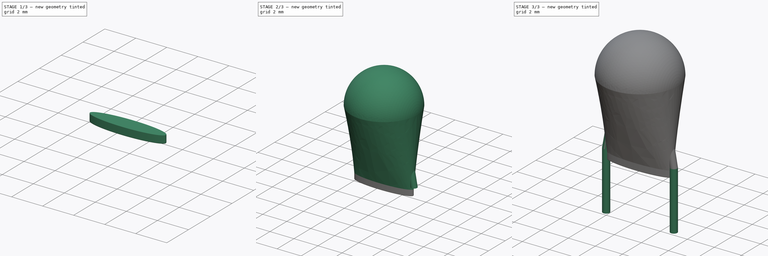
[diagram: build sequence overview — one tinted view per stage of 3, left to right]
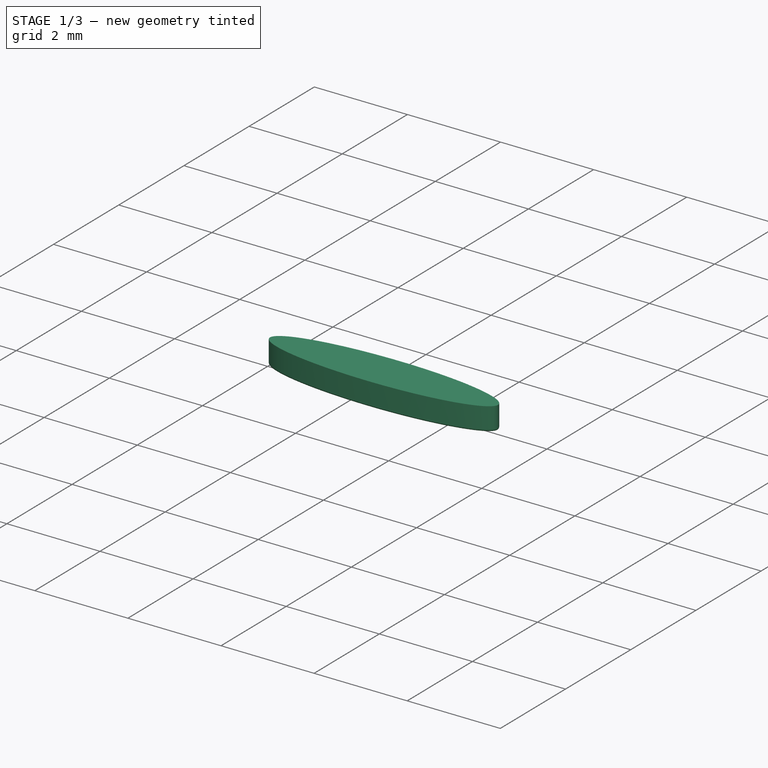
[diagram: stage 1 of 3 — iso view after this stage's code; geometry added in this stage tinted green]
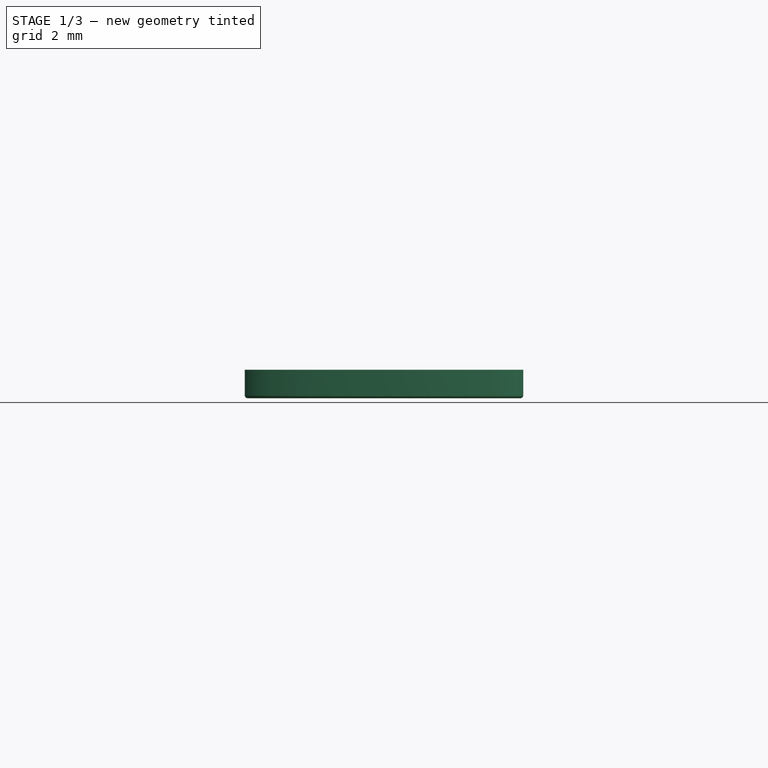
[diagram: stage 1 of 3 — front view after this stage's code; geometry added in this stage tinted green]
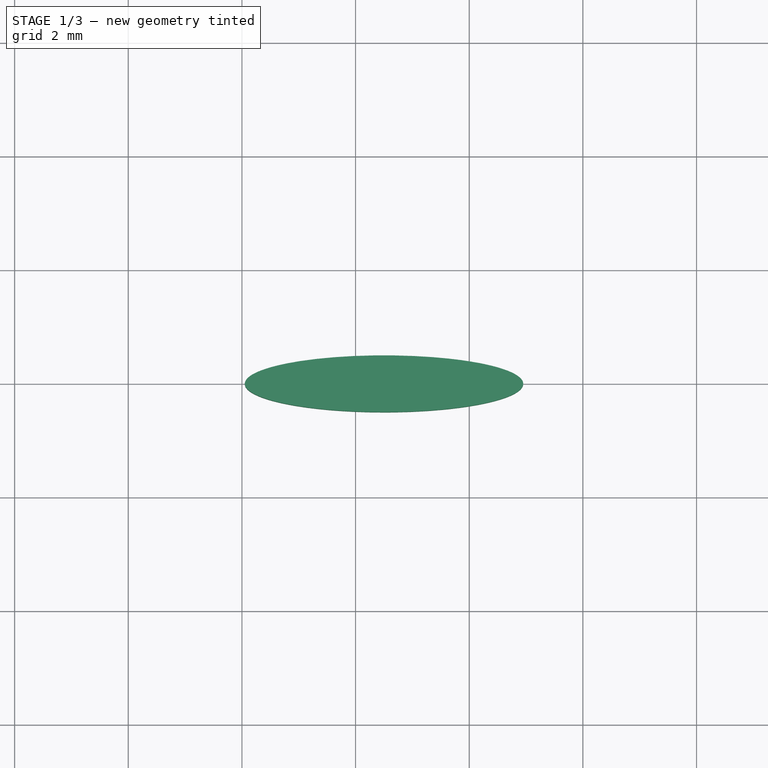
[diagram: stage 1 of 3 — top view after this stage's code; geometry added in this stage tinted green]
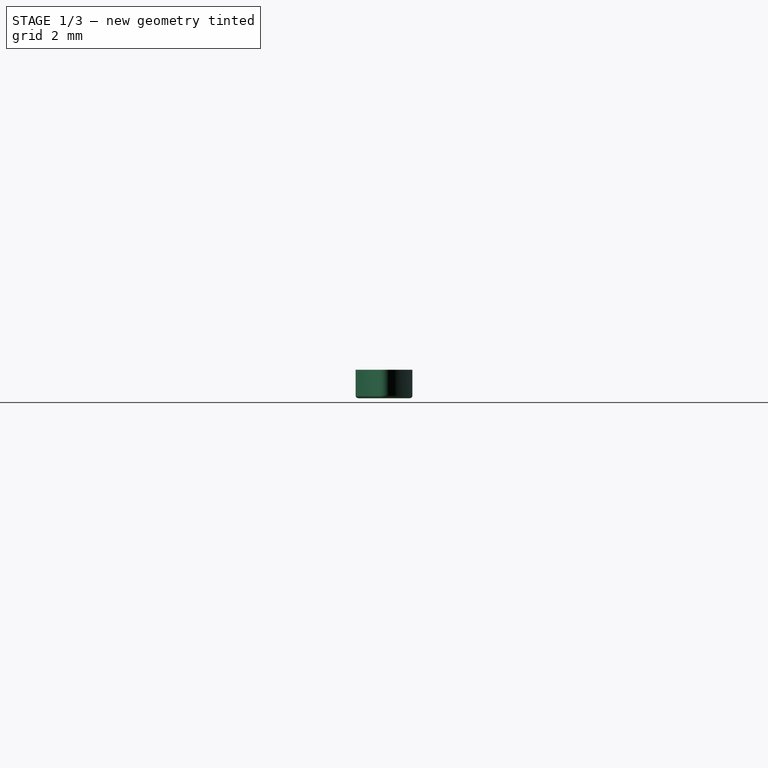
[diagram: stage 1 of 3 — right view after this stage's code; geometry added in this stage tinted green]
FCSTD DOCUMENT  (FreeCAD 0.16R6703 (Git))
Label: CP_Radial_Tantal_D5.5mm_P5.00mm
License: All rights reserved
LicenseURL: http://en.wikipedia.org/wiki/All_rights_reserved
objects: Sketcher::SketchObject×9, Part::Loft×3, PartDesign::Pad×2, Spreadsheet::Sheet×1, PartDesign::Revolution×1, PartDesign::Fillet×1
note: 19 computed .brp shape members not serialized (recipe doc carries the construction recipe); baked Part::Feature solids carry a one-line shape summary decoded from their .brp

FEATURE [Sketcher::SketchObject] Sketch010
  Placement = pos=(0,0,0.9125) rot=(0,0,1;0rad)
  expr: Constraints[8] = 2 * Spreadsheet.d_wire
  expr: Constraints[7] = Spreadsheet.Wx * 0.8 + Spreadsheet.d_wire
  expr: Constraints[6] = Spreadsheet.RMx / 2
  expr: Placement.Base.z = Spreadsheet.d_wire + 0.05 * 1.5 * Spreadsheet.Wx
  sketch-geometry (5):
    g0: Ellipse CenterX=2.5 CenterY=0 CenterZ=0 NormalX=0 NormalY=0 NormalZ=1 MajorRadius=2.45 MinorRadius=0.5 AngleXU=0
    g1: LineSegment [constr] StartX=4.95 StartY=0 StartZ=0 EndX=0.05 EndY=0 EndZ=0
    g2: LineSegment [constr] StartX=2.5 StartY=0.5 StartZ=0 EndX=2.5 EndY=-0.5 EndZ=0
    g3: GeomPoint [constr] X=4.89844 Y=0 Z=0
    g4: GeomPoint [constr] X=0.101563 Y=0 Z=0
  constraints (6):
    c: InternalAlignment(g1-g4 -> g0) x4
    c: PointOnObject(g0,g-1)
    c: Horizontal(g1)
    c: DistanceX(g-1,g0) = 2.5
    c: DistanceX(g1,g1) = 4.9
    c: DistanceY(g2,g2) = 1
FEATURE [PartDesign::Pad] Pad
  Length = 0.5
  Length2 = 100
  Placement = pos=(0,0,0.9125) rot=(0,0,1;0rad)
  Reversed = true
  Sketch = -> Sketch010
  Type = 0
  expr: Length = Spreadsheet.d_wire
FEATURE [PartDesign::Fillet] Fillet
  Base = -> Pad [Edge3]
  Placement = pos=(0,0,0.9125) rot=(0,0,1;0rad)
  Radius = 0.05
  expr: Radius = Spreadsheet.d_wire * 0.1
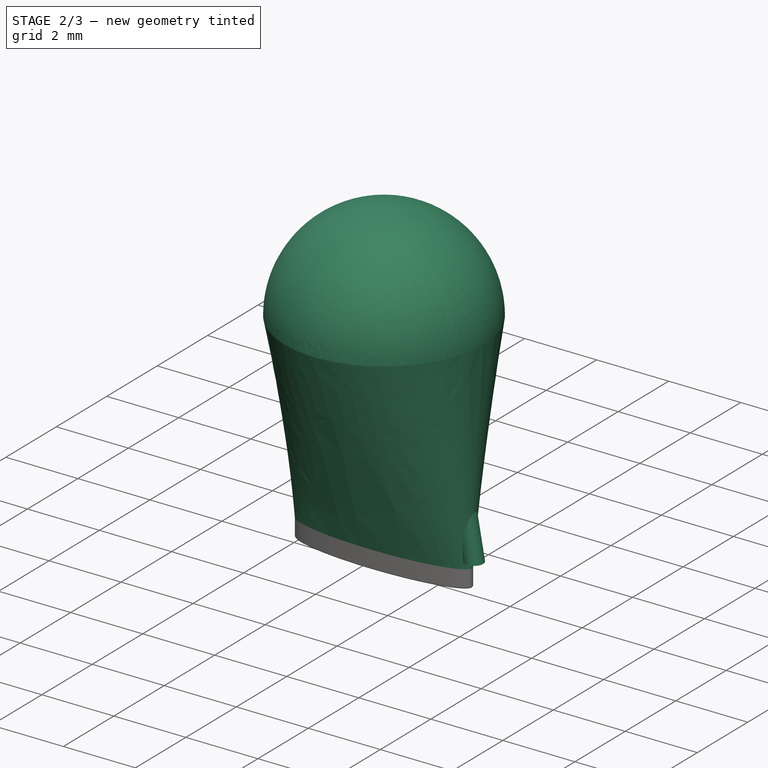
[diagram: stage 2 of 3 — iso view after this stage's code; geometry added in this stage tinted green]
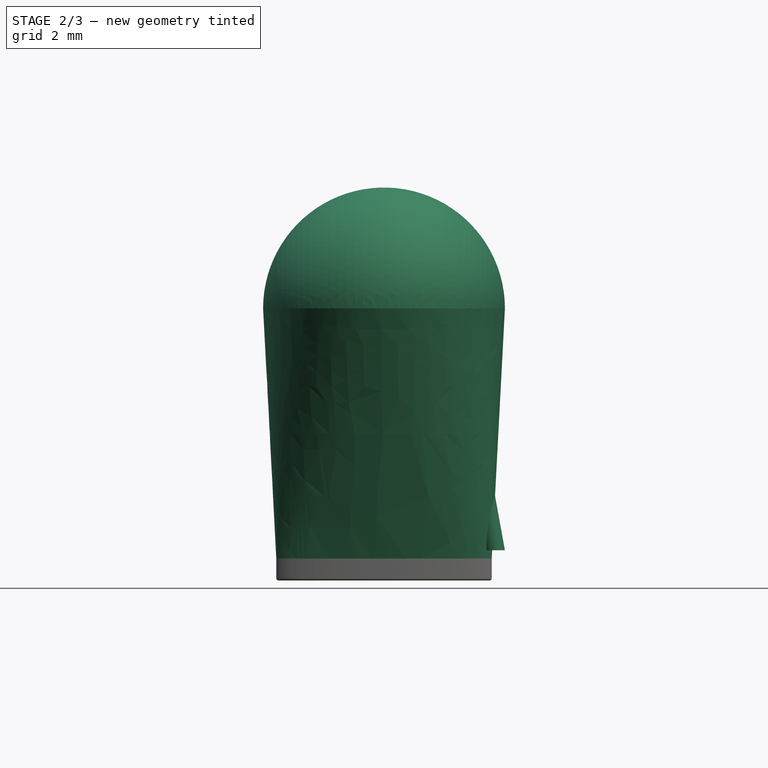
[diagram: stage 2 of 3 — front view after this stage's code; geometry added in this stage tinted green]
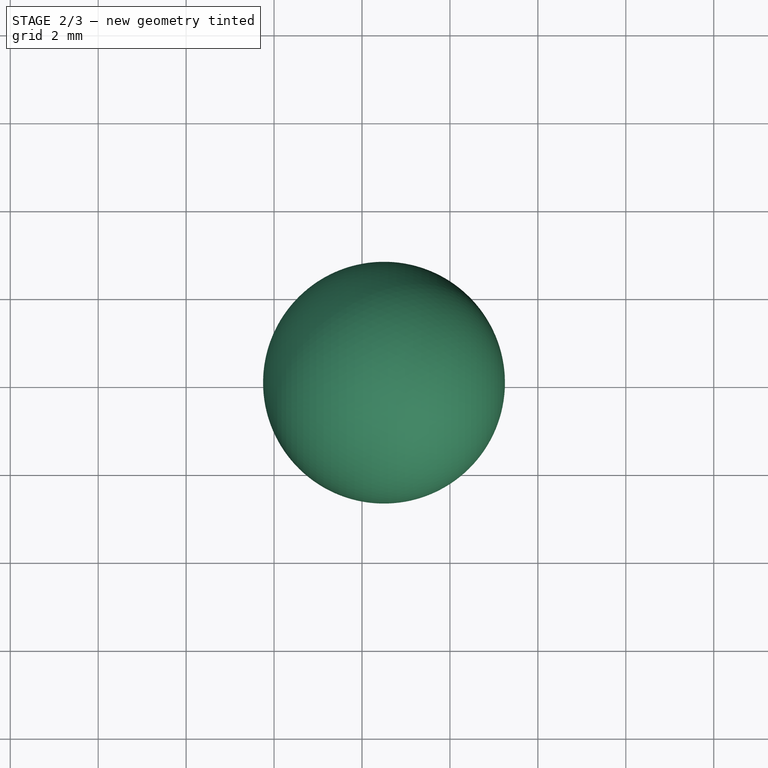
[diagram: stage 2 of 3 — top view after this stage's code; geometry added in this stage tinted green]
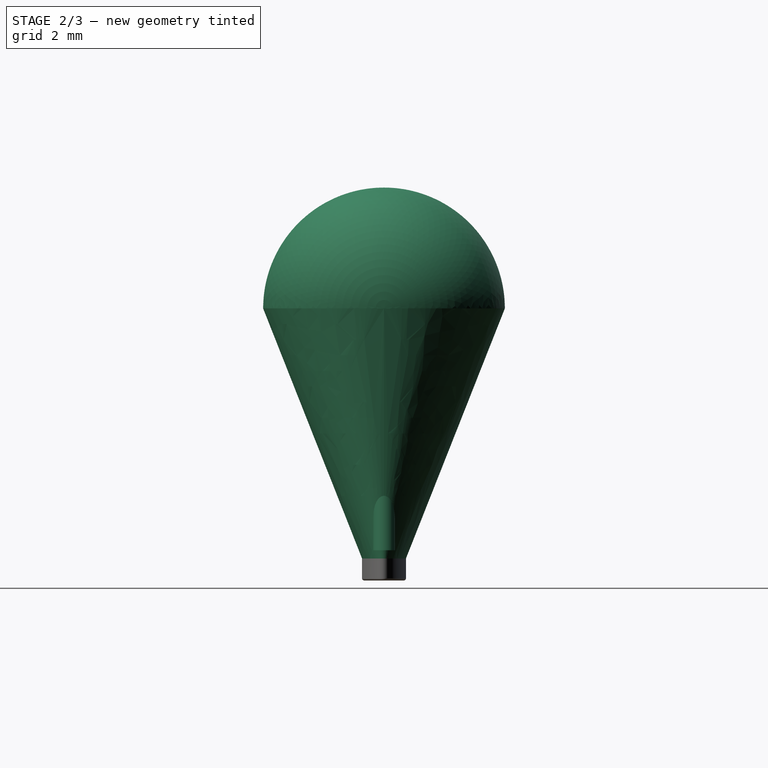
[diagram: stage 2 of 3 — right view after this stage's code; geometry added in this stage tinted green]
FEATURE [Part::Loft] Loft001
  Closed = false
  Ruled = false
  Sections = -> [Sketch004,Sketch005]
  Solid = true
FEATURE [Sketcher::SketchObject] Sketch008
  Placement = pos=(0,0,0) rot=(1,0,0;1.5708rad)
  expr: Constraints[6] = Spreadsheet.RMx / 2
  expr: Constraints[5] = Spreadsheet.Wx * 1.2
  expr: Constraints[4] = Spreadsheet.Wx / 2
  sketch-geometry (3):
    g0: ArcOfCircle CenterX=2.5 CenterY=6.6 CenterZ=0 NormalX=0 NormalY=0 NormalZ=1 Radius=2.75 StartAngle=0 EndAngle=3.14159
    g1: LineSegment StartX=-0.25 StartY=6.6 StartZ=0 EndX=5.25 EndY=6.6 EndZ=0
    g2: LineSegment [constr] StartX=-0.428988 StartY=6.6 StartZ=0 EndX=4.6443 EndY=6.6 EndZ=0
  constraints (9):
    c: Coincident(g1,g0)
    c: Coincident(g1,g0)
    c: Horizontal(g1)
    c: PointOnObject(g0,g1)
    c: DistanceX(g0,g0) = 2.75
    c: DistanceY(g-1,g0) = 6.6
    c: DistanceX(g-1,g0) = 2.5
    c: PointOnObject(g2,g1)
    c: Horizontal(g2)
FEATURE [PartDesign::Revolution] Revolution
  Angle = 180
  Axis = (5.07329,0,0)
  Base = (-0.428988,0,6.6)
  Midplane = true
  Placement = pos=(0,0,0) rot=(1,0,0;1.5708rad)
  ReferenceAxis = -> Sketch008 [Axis0]
  Reversed = true
  Sketch = -> Sketch008
FEATURE [Sketcher::SketchObject] Sketch
  Placement = pos=(0,0,6.6) rot=(0,0,1;0rad)
  expr: Constraints[2] = Spreadsheet.Wx / 2
  expr: Constraints[1] = Spreadsheet.RMx / 2
  expr: Placement.Base.z = Spreadsheet.Wx * 1.2
  sketch-geometry (1):
    g0: Circle CenterX=2.5 CenterY=0 CenterZ=0 NormalX=0 NormalY=0 NormalZ=1 Radius=2.75
  constraints (3):
    c: PointOnObject(g0,g-1)
    c: DistanceX(g-1,g0) = 2.5
    c: Radius(g0) = 2.75
FEATURE [Sketcher::SketchObject] Sketch009
  Placement = pos=(0,0,0.9125) rot=(0,0,1;0rad)
  expr: Constraints[8] = 2 * Spreadsheet.d_wire
  expr: Constraints[7] = Spreadsheet.Wx * 0.8 + Spreadsheet.d_wire
  expr: Constraints[6] = Spreadsheet.RMx / 2
  expr: Placement.Base.z = Spreadsheet.d_wire + 0.05 * 1.5 * Spreadsheet.Wx
  sketch-geometry (5):
    g0: Ellipse CenterX=2.5 CenterY=0 CenterZ=0 NormalX=0 NormalY=0 NormalZ=1 MajorRadius=2.45 MinorRadius=0.5 AngleXU=0
    g1: LineSegment [constr] StartX=4.95 StartY=0 StartZ=0 EndX=0.05 EndY=0 EndZ=0
    g2: LineSegment [constr] StartX=2.5 StartY=0.5 StartZ=0 EndX=2.5 EndY=-0.5 EndZ=0
    g3: GeomPoint [constr] X=4.89844 Y=0 Z=0
    g4: GeomPoint [constr] X=0.101563 Y=0 Z=0
  constraints (6):
    c: InternalAlignment(g1-g4 -> g0) x4
    c: PointOnObject(g0,g-1)
    c: Horizontal(g1)
    c: DistanceX(g-1,g0) = 2.5
    c: DistanceX(g1,g1) = 4.9
    c: DistanceY(g2,g2) = 1
FEATURE [Part::Loft] Loft002
  Closed = false
  Ruled = true
  Sections = -> [Sketch,Sketch009]
  Solid = true
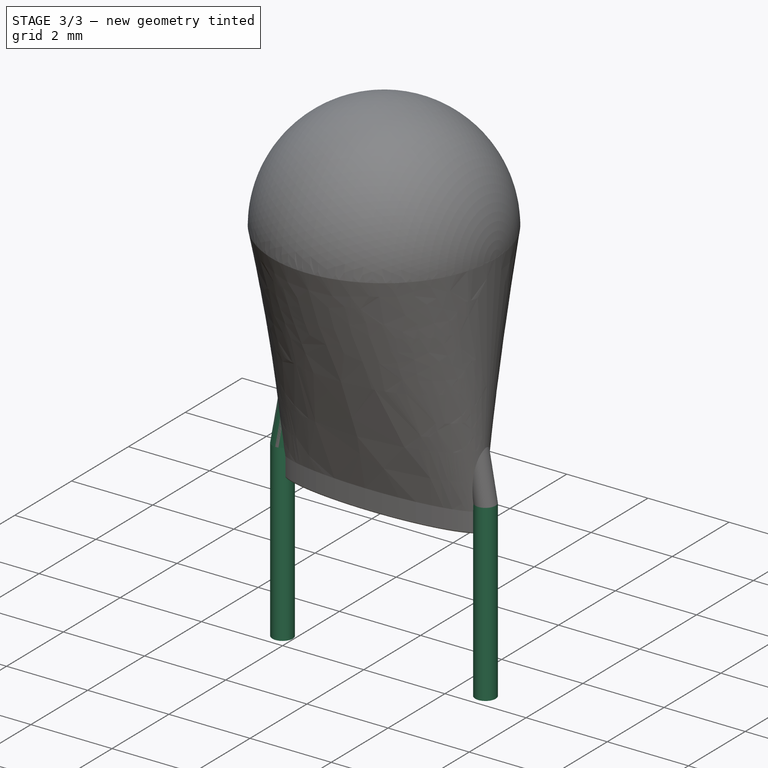
[diagram: stage 3 of 3 — iso view after this stage's code; geometry added in this stage tinted green]
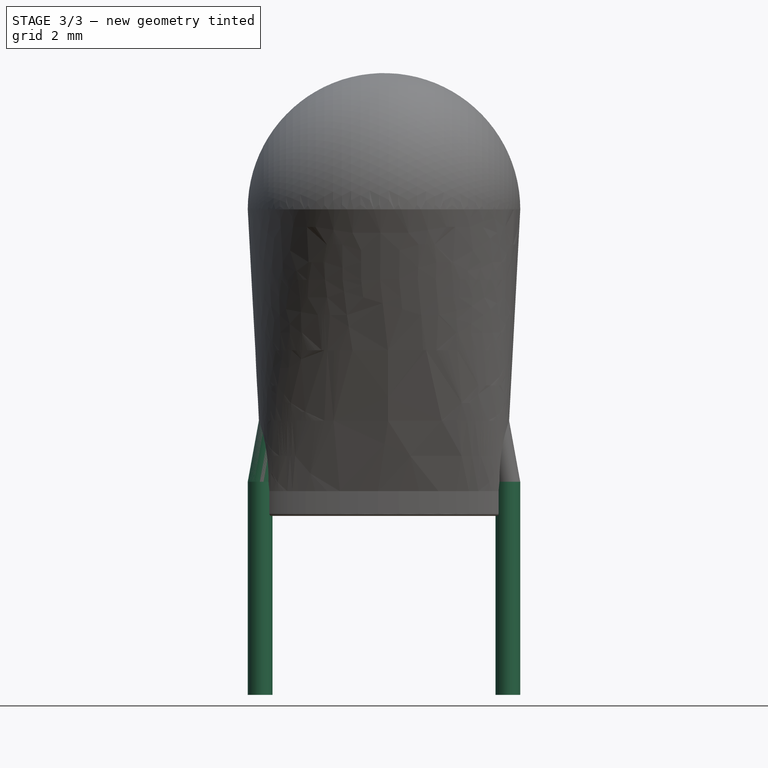
[diagram: stage 3 of 3 — front view after this stage's code; geometry added in this stage tinted green]
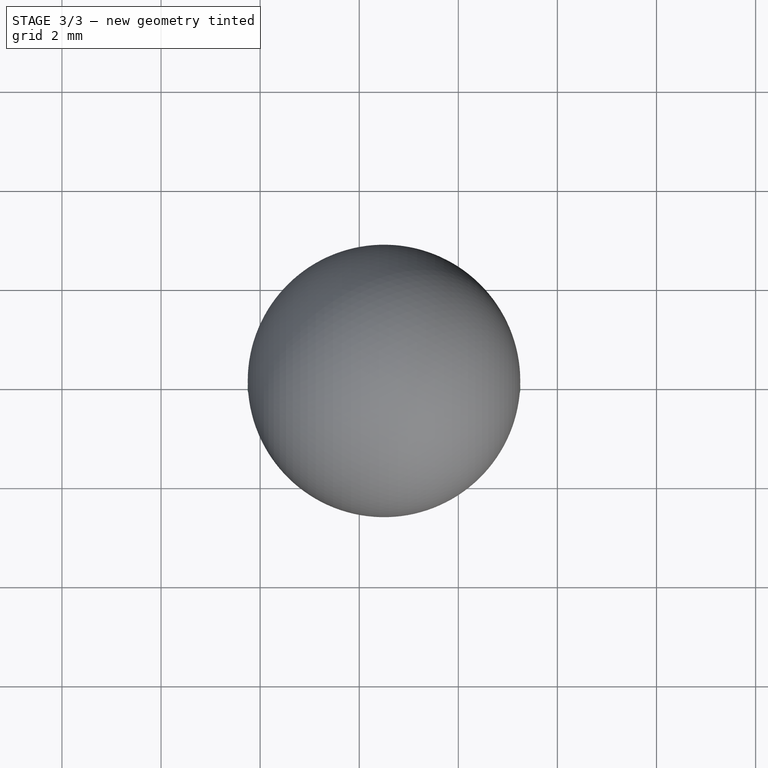
[diagram: stage 3 of 3 — top view after this stage's code; geometry added in this stage tinted green]
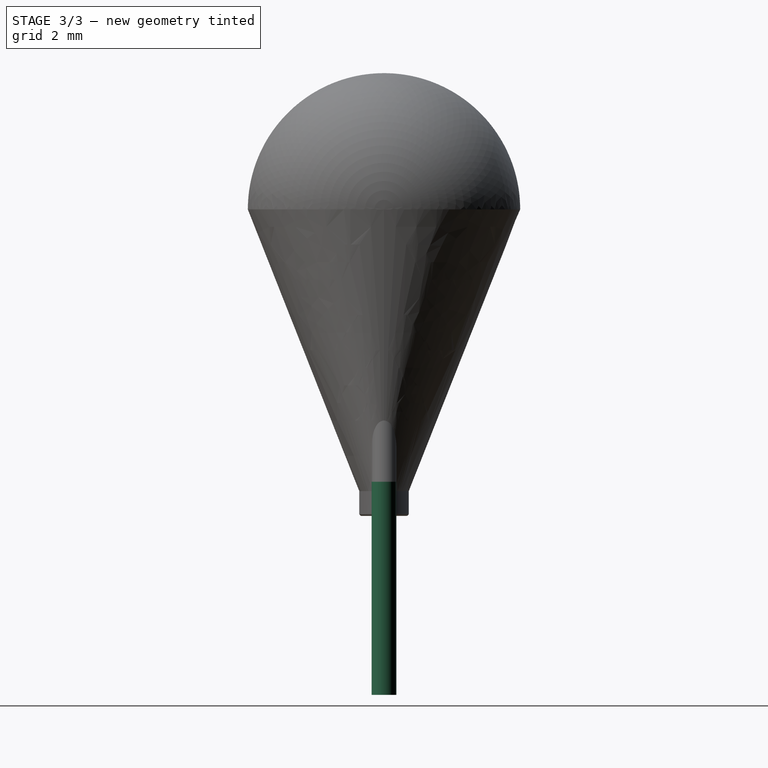
[diagram: stage 3 of 3 — right view after this stage's code; geometry added in this stage tinted green]
FEATURE [Spreadsheet::Sheet] Spreadsheet
  cells = A1=Wx; B1(Wx)=5.5; A2=Wy; B2(Wy)=5.5; A3=RM; B3(RMx)=5; C3(RMy)=0; A4=d_wire; B4(d_wire)=0.5; A5=H; B5(H)=10; A6=offsetx; B6(offset_x)=0.25
FEATURE [Sketcher::SketchObject] Sketch001
  expr: Constraints[3] = Spreadsheet.d_wire / 2
  expr: Constraints[2] = max(Spreadsheet.RMx; Spreadsheet.RMy)
  sketch-geometry (2):
    g0: Circle CenterX=0 CenterY=0 CenterZ=0 NormalX=0 NormalY=0 NormalZ=1 Radius=0.25
    g1: Circle CenterX=5 CenterY=0 CenterZ=0 NormalX=0 NormalY=0 NormalZ=1 Radius=0.25
  constraints (5):
    c: Coincident(g0,g-1)
    c: PointOnObject(g1,g-1)
    c: DistanceX(g-1,g1) = 5
    c: Radius(g0) = 0.25
    c: Equal(g0,g1)
FEATURE [PartDesign::Pad] Pad001
  Length = 1.1
  Length2 = 3.2
  Reversed = true
  Sketch = -> Sketch001
  Type = 4
  expr: Length = Spreadsheet.Wx / 5
FEATURE [Sketcher::SketchObject] Sketch002
  Placement = pos=(0,0,2.75) rot=(0,0,1;0rad)
  expr: Constraints[1] = (Spreadsheet.RMx - Spreadsheet.Wx * 0.8) / 2
  expr: Constraints[2] = Spreadsheet.d_wire / 2
  expr: Placement.Base.z = Spreadsheet.Wx / 2
  sketch-geometry (1):
    g0: Circle CenterX=0.3 CenterY=0 CenterZ=0 NormalX=0 NormalY=0 NormalZ=1 Radius=0.25
  constraints (3):
    c: PointOnObject(g0,g-1)
    c: DistanceX(g-1,g0) = 0.3
    c: Radius(g0) = 0.25
FEATURE [Sketcher::SketchObject] Sketch003
  Placement = pos=(0,0,1.1) rot=(0,0,1;0rad)
  expr: Constraints[2] = Spreadsheet.d_wire / 2
  expr: Placement.Base.z = Spreadsheet.Wx / 5
  sketch-geometry (1):
    g0: Circle CenterX=0 CenterY=0 CenterZ=0 NormalX=0 NormalY=0 NormalZ=1 Radius=0.25
  constraints (3):
    c: PointOnObject(g0,g-1)
    c: DistanceX(g-1,g0) = 0
    c: Radius(g0) = 0.25
FEATURE [Sketcher::SketchObject] Sketch004
  Placement = pos=(0,0,1.1) rot=(0,0,1;0rad)
  expr: Constraints[2] = Spreadsheet.RMx
  expr: Placement.Base.z = Spreadsheet.Wx / 5
  expr: Constraints[1] = Spreadsheet.d_wire / 2
  sketch-geometry (1):
    g0: Circle CenterX=5 CenterY=0 CenterZ=0 NormalX=0 NormalY=0 NormalZ=1 Radius=0.25
  constraints (3):
    c: PointOnObject(g0,g-1)
    c: Radius(g0) = 0.25
    c: DistanceX(g-1,g0) = 5
FEATURE [Sketcher::SketchObject] Sketch005
  Placement = pos=(0,0,2.75) rot=(0,0,1;0rad)
  expr: Constraints[2] = (Spreadsheet.RMx - Spreadsheet.Wx * 0.8) / 2 + Spreadsheet.Wx * 0.8
  expr: Placement.Base.z = Spreadsheet.Wx / 2
  expr: Constraints[1] = Spreadsheet.d_wire / 2
  sketch-geometry (1):
    g0: Circle CenterX=4.7 CenterY=0 CenterZ=0 NormalX=0 NormalY=0 NormalZ=1 Radius=0.25
  constraints (3):
    c: PointOnObject(g0,g-1)
    c: Radius(g0) = 0.25
    c: DistanceX(g-1,g0) = 4.7
FEATURE [Part::Loft] Loft
  Closed = false
  Ruled = false
  Sections = -> [Sketch002,Sketch003]
  Solid = true
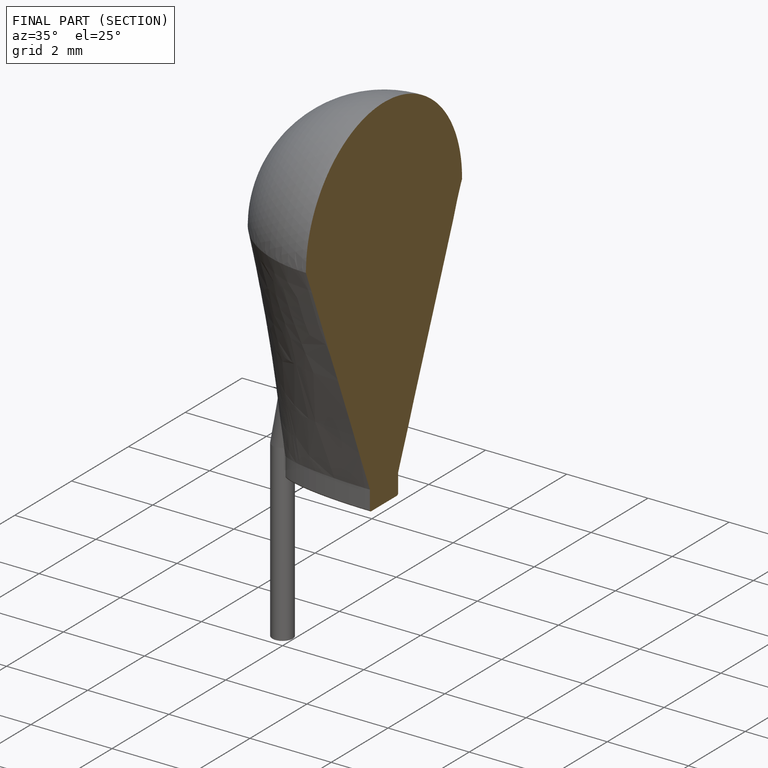
[diagram: finished part — half-section view (interior)]
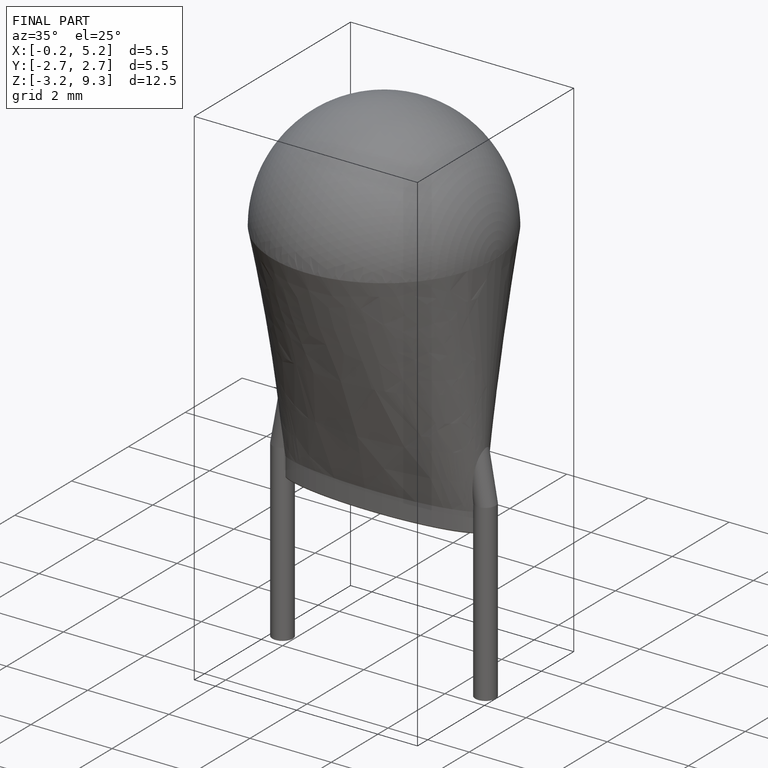
[diagram: finished part — iso view with bounding-box wireframe]
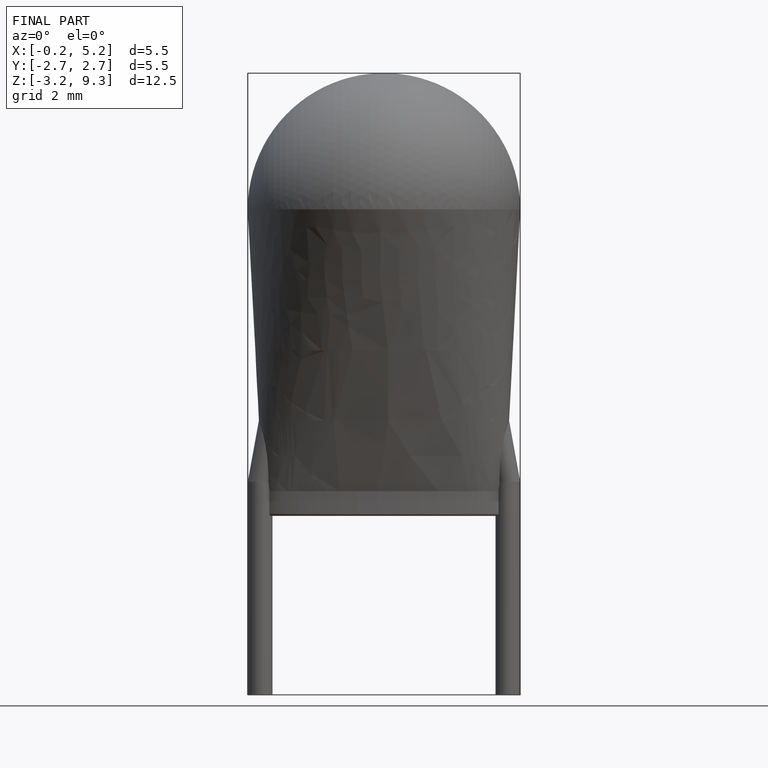
[diagram: finished part — front view with bounding-box wireframe]
